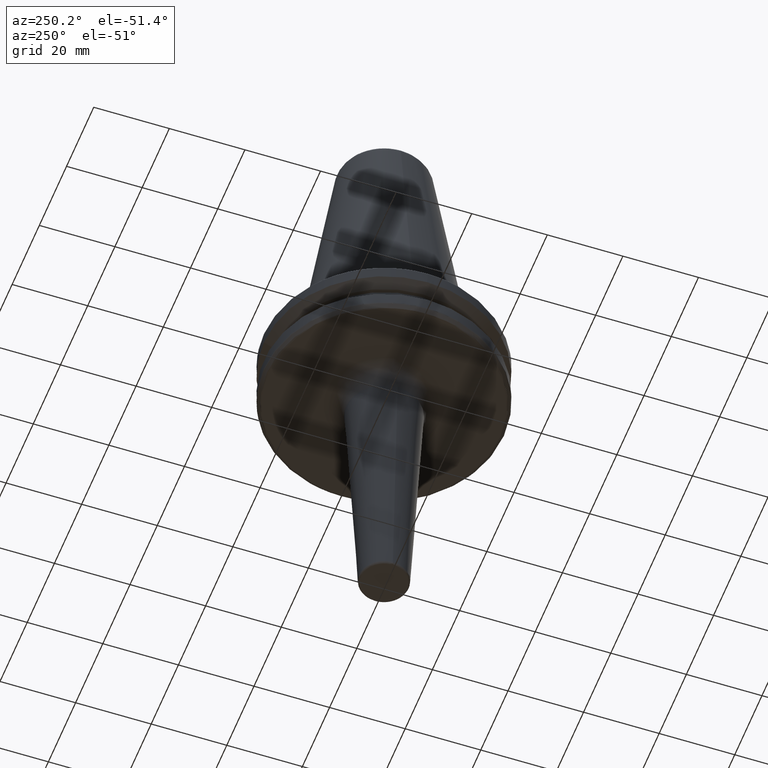
[diagram: clean part render]
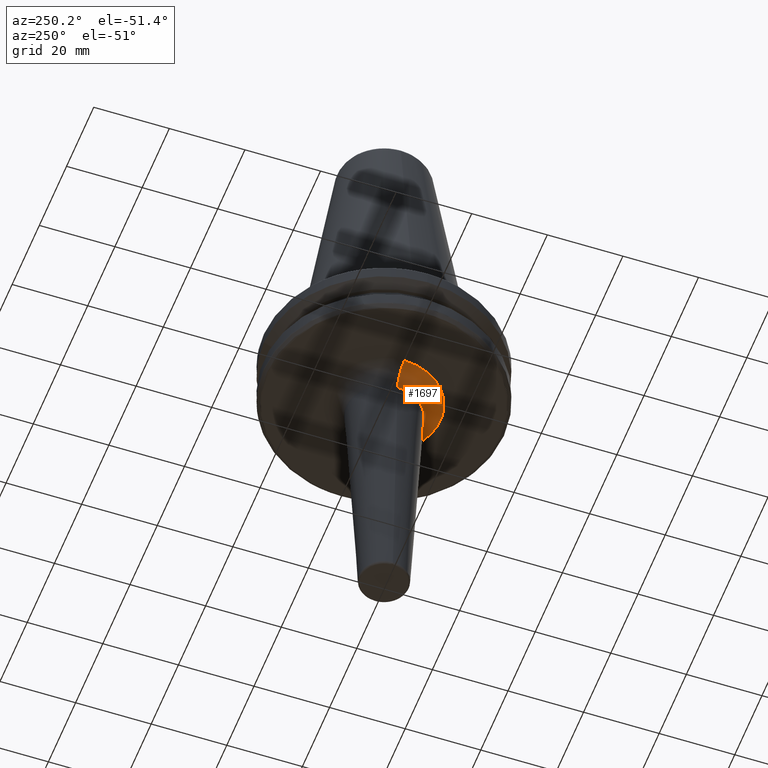
[diagram: same view with one face highlighted and labeled with its STEP entity id]
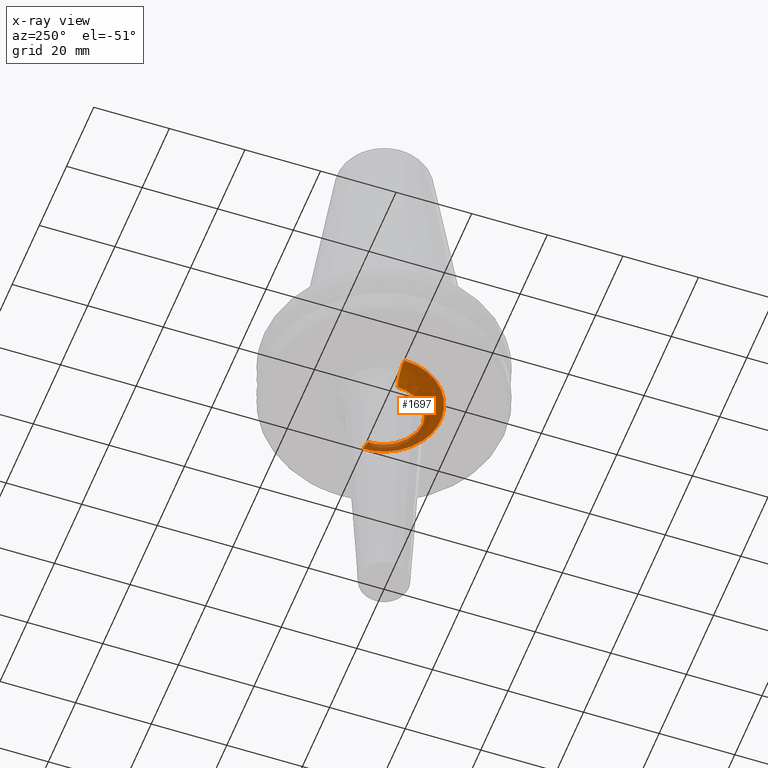
[diagram: x-ray of the same camera — body ghosted, the highlighted face saturated]
A machine part, auxiliary view. The second image highlights one B-rep face of the part: STEP entity #1697.
The next image is the same camera in x-ray: the body ghosted, the highlighted face saturated — about 20% of this face is hidden behind the body in this view.
In plain terms, the highlighted face is a freeform B-spline surface patch.
Its self-contained STEP definition (entity closure, byte-faithful):
#31 = AXIS2_PLACEMENT_3D ( 'NONE', #1517, #95, #1741 ) ;
#48 = CARTESIAN_POINT ( 'NONE',  ( -1.822834357102871800, -14.87724839754033300, -19.10000000000000900 ) ) ;
#60 = CARTESIAN_POINT ( 'NONE',  ( 5.110613125936054300, -14.06149893448535500, -19.10000000000000100 ) ) ;
#77 = CARTESIAN_POINT ( 'NONE',  ( 9.848615005509918400, -11.30872306776463700, -19.10000000000000100 ) ) ;
#85 = CARTESIAN_POINT ( 'NONE',  ( -10.11438543970568600, -2.477309950815632100E-015, -21.03341738283256700 ) ) ;
#93 = CARTESIAN_POINT ( 'NONE',  ( 13.86314464546744100, -5.624218442579086200, -19.10000000000000500 ) ) ;
#95 = DIRECTION ( 'NONE',  ( 0.0000000000000000000, 0.0000000000000000000, -1.000000000000000000 ) ) ;
#106 = CARTESIAN_POINT ( 'NONE',  ( 14.96053438474158700, 1.832137054780770000E-015, -19.10000000000000500 ) ) ;
#200 = CARTESIAN_POINT ( 'NONE',  ( -14.77906769165148200, -2.328123564916845900, -19.10000000000000100 ) ) ;
#207 = CARTESIAN_POINT ( 'NONE',  ( -13.72411570560614200, -5.976803100712901400, -19.10000000000000900 ) ) ;
#218 = CARTESIAN_POINT ( 'NONE',  ( -8.401418717068052500, -12.37894442582497200, -19.10000000000000100 ) ) ;
#227 = CARTESIAN_POINT ( 'NONE',  ( -3.551708748808718200, -14.53645404171686200, -19.10000000000000100 ) ) ;
#284 = CARTESIAN_POINT ( 'NONE',  ( 0.4573533666986031600, -14.96055059751908300, -19.10000000000000500 ) ) ;
#299 = CARTESIAN_POINT ( 'NONE',  ( 5.393945895505792600, -13.95434931609664500, -19.10000000000000500 ) ) ;
#309 = CARTESIAN_POINT ( 'NONE',  ( 14.96053438474158500, 1.832137054780770000E-015, -19.10000000000000900 ) ) ;
#314 = CARTESIAN_POINT ( 'NONE',  ( 11.46041618470569300, -9.640902905948241400, -19.10000000000000900 ) ) ;
#321 = CARTESIAN_POINT ( 'NONE',  ( 9.967386710968716200, -19.93477342193742500, -23.83832021878532700 ) ) ;
#327 = CARTESIAN_POINT ( 'NONE',  ( 13.89897069281874000, -5.535078170416923600, -19.10000000000000100 ) ) ;
#372 =( BOUNDED_SURFACE ( )  B_SPLINE_SURFACE ( 3, 3, ( 
 ( #309, #1951, #546, #2178 ),
 ( #791, #2390, #1024, #2626 ),
 ( #1264, #2853, #1508, #85 ),
 ( #1735, #321, #1961, #558 ) ),
 .UNSPECIFIED., .F., .F., .T. ) 
 B_SPLINE_SURFACE_WITH_KNOTS ( ( 4, 4 ),
 ( 4, 4 ),
 ( 0.0000000000000000000, 1.000000000000000000 ),
 ( 0.0000000000000000000, 1.000000000000000000 ),
 .UNSPECIFIED. ) 
 GEOMETRIC_REPRESENTATION_ITEM ( )  RATIONAL_B_SPLINE_SURFACE ( (
 ( 1.000000000000000000, 0.3333333333333334300, 0.3333333333333334300, 1.000000000000000000),
 ( 0.8169162473415236800, 0.2723054157805079900, 0.2723054157805079900, 0.8169162473415236800),
 ( 0.8169162473415236800, 0.2723054157805079900, 0.2723054157805079900, 0.8169162473415236800),
 ( 1.000000000000000000, 0.3333333333333334300, 0.3333333333333334300, 1.000000000000000000) ) ) 
 REPRESENTATION_ITEM ( '' )  SURFACE ( )  );
#403 = EDGE_CURVE ( 'NONE', #696, #2655, #1072, .T. ) ;
#435 = CARTESIAN_POINT ( 'NONE',  ( -14.73118064764160600, -2.609732947942208000, -19.10000000000000500 ) ) ;
#444 = CARTESIAN_POINT ( 'NONE',  ( -12.98633215065384100, -7.435565127019459400, -19.10000000000000100 ) ) ;
#452 = CARTESIAN_POINT ( 'NONE',  ( -8.239424959934053700, -12.48732913688525900, -19.10000000000000500 ) ) ;
#458 = CARTESIAN_POINT ( 'NONE',  ( -2.930704362195605000, -14.67089392985189500, -19.10000000000000500 ) ) ;
#521 = CARTESIAN_POINT ( 'NONE',  ( 1.933051623074510500, -14.83827703210904900, -19.10000000000000900 ) ) ;
#536 = CARTESIAN_POINT ( 'NONE',  ( 5.477524212900336300, -13.92175573251021000, -19.10000000000000500 ) ) ;
#546 = CARTESIAN_POINT ( 'NONE',  ( -14.96053438474158000, -29.92106876948317100, -19.10000000000000900 ) ) ;
#551 = CARTESIAN_POINT ( 'NONE',  ( 12.27003892767507600, -8.561188725189095900, -19.10000000000000100 ) ) ;
#558 = CARTESIAN_POINT ( 'NONE',  ( -9.967386710968714400, -2.441305646290340400E-015, -23.83832021878532400 ) ) ;
#561 = CARTESIAN_POINT ( 'NONE',  ( 14.32266670053905600, -4.369645814230485900, -19.10000000000000500 ) ) ;
#573 = ORIENTED_EDGE ( 'NONE', *, *, #2842, .T. ) ;
#662 = CARTESIAN_POINT ( 'NONE',  ( -14.96053438474158700, 0.0000000000000000000, -19.10000000000000500 ) ) ;
#669 = CARTESIAN_POINT ( 'NONE',  ( -14.71628863103540900, -2.692457026900050700, -19.10000000000000500 ) ) ;
#674 = CARTESIAN_POINT ( 'NONE',  ( -12.65849289802877900, -7.973985480574773600, -19.10000000000000500 ) ) ;
#681 = CARTESIAN_POINT ( 'NONE',  ( -7.111348432196256100, -13.17942268091052000, -19.10000000000000500 ) ) ;
#695 = CARTESIAN_POINT ( 'NONE',  ( -2.781895805046198200, -14.69964382547349000, -19.10000000000000100 ) ) ;
#696 = VERTEX_POINT ( 'NONE', #906 ) ;
#716 = CARTESIAN_POINT ( 'NONE',  ( -14.96053438474158500, 0.0000000000000000000, -24.10000000000000900 ) ) ;
#767 = CARTESIAN_POINT ( 'NONE',  ( 2.525260090910677500, -14.74606561499225100, -19.10000000000000900 ) ) ;
#781 = CARTESIAN_POINT ( 'NONE',  ( 6.664192353297434800, -13.41107638299839000, -19.10000000000000500 ) ) ;
#791 = CARTESIAN_POINT ( 'NONE',  ( 12.15178225160734900, 1.488164123836655700E-015, -19.10000000000001600 ) ) ;
#798 = CARTESIAN_POINT ( 'NONE',  ( 12.45090476805093400, -8.294379175922422600, -19.10000000000000900 ) ) ;
#810 = CARTESIAN_POINT ( 'NONE',  ( 14.62854735930698200, -3.138425023209853800, -19.10000000000000900 ) ) ;
#878 = EDGE_CURVE ( 'NONE', #922, #696, #2930, .T. ) ;
#906 = CARTESIAN_POINT ( 'NONE',  ( 14.96053438474158700, 1.832137054780770000E-015, -19.10000000000000500 ) ) ;
#913 = CARTESIAN_POINT ( 'NONE',  ( -14.45627731223578400, -3.904952447476566200, -19.10000000000000900 ) ) ;
#922 = VERTEX_POINT ( 'NONE', #2885 ) ;
#925 = CARTESIAN_POINT ( 'NONE',  ( -12.55720869914989100, -8.132539203948995900, -19.10000000000000500 ) ) ;
#934 = CARTESIAN_POINT ( 'NONE',  ( -5.915755106728197700, -13.74228308868734800, -19.10000000000000500 ) ) ;
#951 = DIRECTION ( 'NONE',  ( -1.000000000000000000, 0.0000000000000000000, 0.0000000000000000000 ) ) ;
#990 = EDGE_LOOP ( 'NONE', ( #2775, #2266, #573, #2521 ) ) ;
#1003 = CARTESIAN_POINT ( 'NONE',  ( 2.665998871118263400, -14.72110115962375900, -19.10000000000000500 ) ) ;
#1017 = CARTESIAN_POINT ( 'NONE',  ( 7.813606175290055400, -12.75907711216800800, -19.10000000000000100 ) ) ;
#1024 = CARTESIAN_POINT ( 'NONE',  ( -12.15178225160734000, -24.30356450321469500, -19.10000000000001200 ) ) ;
#1028 = AXIS2_PLACEMENT_3D ( 'NONE', #2135, #2558, #2599 ) ;
#1031 = CARTESIAN_POINT ( 'NONE',  ( 12.79846803407255100, -7.763553301176772300, -19.10000000000000500 ) ) ;
#1043 = CARTESIAN_POINT ( 'NONE',  ( 14.68824958403206400, -2.841450050711145100, -19.10000000000000500 ) ) ;
#1072 = CIRCLE ( 'NONE', #1028, 4.999999999999999100 ) ;
#1139 = CARTESIAN_POINT ( 'NONE',  ( -14.06149893448506400, -5.110613125940515600, -19.10000000000000500 ) ) ;
#1149 = CARTESIAN_POINT ( 'NONE',  ( -11.30872306775847500, -9.848615005516089500, -19.10000000000000500 ) ) ;
#1158 = CARTESIAN_POINT ( 'NONE',  ( -5.624218442581563300, -13.86314464546607500, -19.10000000000000500 ) ) ;
#1244 = CARTESIAN_POINT ( 'NONE',  ( 3.199184109788572300, -14.62253607668546700, -19.10000000000000500 ) ) ;
#1257 = CARTESIAN_POINT ( 'NONE',  ( 8.080540953684392800, -12.59072804468604700, -19.10000000000000100 ) ) ;
#1264 = CARTESIAN_POINT ( 'NONE',  ( 10.11438543970568600, 1.238654975407816400E-015, -21.03341738283256700 ) ) ;
#1268 = CARTESIAN_POINT ( 'NONE',  ( 13.56454964078820800, -6.319451434702531700, -19.10000000000000500 ) ) ;
#1281 = CARTESIAN_POINT ( 'NONE',  ( 14.70557042885873500, -2.750377173285976500, -19.10000000000000500 ) ) ;
#1314 = CARTESIAN_POINT ( 'NONE',  ( 9.967386710968712600, 0.0000000000000000000, -23.83832021878532000 ) ) ;
#1387 = CARTESIAN_POINT ( 'NONE',  ( -13.95434931609656300, -5.393945895507192400, -19.10000000000000900 ) ) ;
#1398 = CARTESIAN_POINT ( 'NONE',  ( -9.640902905953629100, -11.46041618470029600, -19.10000000000000500 ) ) ;
#1406 = CARTESIAN_POINT ( 'NONE',  ( -5.535078170416636700, -13.89897069281875400, -19.09999999999999800 ) ) ;
#1440 = EDGE_CURVE ( 'NONE', #2655, #2085, #1634, .T. ) ;
#1483 = CARTESIAN_POINT ( 'NONE',  ( 4.711529462871536300, -14.20297987373240300, -19.10000000000000100 ) ) ;
#1501 = CARTESIAN_POINT ( 'NONE',  ( 9.050728366952482100, -11.95696294643678400, -19.10000000000000900 ) ) ;
#1508 = CARTESIAN_POINT ( 'NONE',  ( -10.11438543970568000, -20.22877087941137100, -21.03341738283256400 ) ) ;
#1513 = CARTESIAN_POINT ( 'NONE',  ( 13.82744230463585600, -5.711969985418119400, -19.10000000000000500 ) ) ;
#1517 = CARTESIAN_POINT ( 'NONE',  ( 0.0000000000000000000, 0.0000000000000000000, -23.83832021878532000 ) ) ;
#1525 = CARTESIAN_POINT ( 'NONE',  ( 14.96053438474158700, -0.9152375320867005600, -19.10000000000000500 ) ) ;
#1570 = CARTESIAN_POINT ( 'NONE',  ( -2.750371694403849400, -14.70557144293955100, -19.10000000000000100 ) ) ;
#1616 = CARTESIAN_POINT ( 'NONE',  ( -14.83825575283857900, -1.933166636284343400, -19.10000000000000500 ) ) ;
#1622 = CARTESIAN_POINT ( 'NONE',  ( -13.92175573251049200, -5.477524212899922400, -19.10000000000000100 ) ) ;
#1634 = CIRCLE ( 'NONE', #31, 9.967386710968714400 ) ;
#1635 = CARTESIAN_POINT ( 'NONE',  ( -8.561188725191460200, -12.27003892767272000, -19.10000000000000900 ) ) ;
#1642 = CARTESIAN_POINT ( 'NONE',  ( -4.369645814238539000, -14.32266670053856400, -19.10000000000000500 ) ) ;
#1695 = CARTESIAN_POINT ( 'NONE',  ( -0.9147067333972260800, -14.96050195918658000, -19.10000000000000100 ) ) ;
#1697 = ADVANCED_FACE ( 'NONE', ( #1821 ), #372, .F. ) ;
#1715 = CARTESIAN_POINT ( 'NONE',  ( 5.309103746308795600, -13.98705040986307300, -19.10000000000000500 ) ) ;
#1728 = CARTESIAN_POINT ( 'NONE',  ( 10.94373546768296800, -10.21368143655561100, -19.10000000000000100 ) ) ;
#1735 = CARTESIAN_POINT ( 'NONE',  ( 9.967386710968714400, 1.220652823145170200E-015, -23.83832021878532400 ) ) ;
#1740 = CARTESIAN_POINT ( 'NONE',  ( 13.88676965802146900, -5.565625177957300300, -19.10000000000000500 ) ) ;
#1741 = DIRECTION ( 'NONE',  ( -1.000000000000000000, 0.0000000000000000000, 0.0000000000000000000 ) ) ;
#1821 = FACE_OUTER_BOUND ( 'NONE', #990, .T. ) ;
#1839 = CARTESIAN_POINT ( 'NONE',  ( -14.74605896522022900, -2.525296032538750300, -19.10000000000000900 ) ) ;
#1847 = CARTESIAN_POINT ( 'NONE',  ( -13.41107638299028100, -6.664192353308994400, -19.09999999999999800 ) ) ;
#1855 = CARTESIAN_POINT ( 'NONE',  ( -8.294379175923174000, -12.45090476805019200, -19.10000000000000500 ) ) ;
#1859 = CARTESIAN_POINT ( 'NONE',  ( -9.967386710968712600, 1.220652823145169800E-015, -23.83832021878532000 ) ) ;
#1861 = CARTESIAN_POINT ( 'NONE',  ( -3.138425023213379000, -14.62854735930676000, -19.10000000000000500 ) ) ;
#1926 = CARTESIAN_POINT ( 'NONE',  ( 1.140651454518116100, -14.92934268087165100, -19.10000000000000100 ) ) ;
#1942 = CARTESIAN_POINT ( 'NONE',  ( 5.450457270629521600, -13.93237201287146700, -19.09999999999999800 ) ) ;
#1951 = CARTESIAN_POINT ( 'NONE',  ( 14.96053438474159100, -29.92106876948316000, -19.10000000000000900 ) ) ;
#1955 = CARTESIAN_POINT ( 'NONE',  ( 12.00917120495389100, -8.928460285651315300, -19.10000000000000900 ) ) ;
#1961 = CARTESIAN_POINT ( 'NONE',  ( -9.967386710968709100, -19.93477342193742900, -23.83832021878532700 ) ) ;
#1967 = CARTESIAN_POINT ( 'NONE',  ( 14.08867634067427800, -5.055939780440895400, -19.10000000000000100 ) ) ;
#2066 = CARTESIAN_POINT ( 'NONE',  ( -14.96053438474158500, -0.4574409958108649500, -19.10000000000000100 ) ) ;
#2076 = CARTESIAN_POINT ( 'NONE',  ( -14.72109916469215200, -2.666009653606686000, -19.10000000000000100 ) ) ;
#2082 = CARTESIAN_POINT ( 'NONE',  ( -12.75907711216446400, -7.813606175295118000, -19.10000000000000500 ) ) ;
#2085 = VERTEX_POINT ( 'NONE', #1859 ) ;
#2089 = CARTESIAN_POINT ( 'NONE',  ( -7.763553301187065400, -12.79846803406686800, -19.10000000000000500 ) ) ;
#2099 = CARTESIAN_POINT ( 'NONE',  ( -2.841450050712249100, -14.68824958403198800, -19.09999999999999800 ) ) ;
#2135 = CARTESIAN_POINT ( 'NONE',  ( 14.96053438474158500, 1.832137054780770000E-015, -24.10000000000000900 ) ) ;
#2154 = CARTESIAN_POINT ( 'NONE',  ( 2.328056473877775400, -14.77908010455926300, -19.10000000000000500 ) ) ;
#2169 = CARTESIAN_POINT ( 'NONE',  ( 5.976803100706304100, -13.72411570561076900, -19.10000000000000900 ) ) ;
#2178 = CARTESIAN_POINT ( 'NONE',  ( -14.96053438474158500, -3.664274109561540000E-015, -19.10000000000000900 ) ) ;
#2182 = CARTESIAN_POINT ( 'NONE',  ( 12.37894442582639200, -8.401418717066633200, -19.10000000000000900 ) ) ;
#2190 = CARTESIAN_POINT ( 'NONE',  ( 14.53645404171724000, -3.551708748802668800, -19.10000000000000900 ) ) ;
#2266 = ORIENTED_EDGE ( 'NONE', *, *, #878, .F. ) ;
#2292 = CARTESIAN_POINT ( 'NONE',  ( -14.62253607668509800, -3.199184109794402700, -19.10000000000000100 ) ) ;
#2305 = CARTESIAN_POINT ( 'NONE',  ( -12.59072804468492500, -8.080540953685993300, -19.10000000000000100 ) ) ;
#2314 = CARTESIAN_POINT ( 'NONE',  ( -6.319451434716038200, -13.56454964078074700, -19.10000000000000500 ) ) ;
#2333 = DIRECTION ( 'NONE',  ( 0.0000000000000000000, 1.000000000000000000, 0.0000000000000000000 ) ) ;
#2372 = CARTESIAN_POINT ( 'NONE',  ( 2.609711896417192800, -14.73118454250807100, -19.10000000000000500 ) ) ;
#2384 = CARTESIAN_POINT ( 'NONE',  ( 7.435565127010795200, -12.98633215065991900, -19.10000000000000500 ) ) ;
#2390 = CARTESIAN_POINT ( 'NONE',  ( 12.15178225160735100, -24.30356450321468400, -19.10000000000001200 ) ) ;
#2395 = CARTESIAN_POINT ( 'NONE',  ( 12.48732913688454500, -8.239424959935336200, -19.10000000000000500 ) ) ;
#2407 = CARTESIAN_POINT ( 'NONE',  ( 14.67089392985201700, -2.930704362193714600, -19.10000000000000900 ) ) ;
#2511 = CARTESIAN_POINT ( 'NONE',  ( -14.20297987373192000, -4.711529462879185300, -19.10000000000000900 ) ) ;
#2520 = CARTESIAN_POINT ( 'NONE',  ( -11.95696294643864400, -9.050728366950624000, -19.10000000000000100 ) ) ;
#2521 = ORIENTED_EDGE ( 'NONE', *, *, #1440, .F. ) ;
#2529 = CARTESIAN_POINT ( 'NONE',  ( -5.711969985422344500, -13.82744230463352700, -19.10000000000000500 ) ) ;
#2558 = DIRECTION ( 'NONE',  ( 1.224646799147353200E-016, -1.000000000000000000, 0.0000000000000000000 ) ) ;
#2599 = DIRECTION ( 'NONE',  ( 1.000000000000000000, 1.224646799147353900E-016, 0.0000000000000000000 ) ) ;
#2604 = CARTESIAN_POINT ( 'NONE',  ( 2.692457026900414400, -14.71628863103537900, -19.10000000000000100 ) ) ;
#2618 = CARTESIAN_POINT ( 'NONE',  ( 7.973985480571730700, -12.65849289803091300, -19.10000000000000900 ) ) ;
#2626 = CARTESIAN_POINT ( 'NONE',  ( -12.15178225160734900, -2.976328247673311500E-015, -19.10000000000001600 ) ) ;
#2633 = CARTESIAN_POINT ( 'NONE',  ( 13.17942268092046600, -7.111348432178251900, -19.10000000000000900 ) ) ;
#2644 = CARTESIAN_POINT ( 'NONE',  ( 14.69964382547353500, -2.781895805045632400, -19.10000000000000900 ) ) ;
#2655 = VERTEX_POINT ( 'NONE', #1314 ) ;
#2725 = CIRCLE ( 'NONE', #2921, 4.999999999999999100 ) ;
#2742 = CARTESIAN_POINT ( 'NONE',  ( -13.98705040986291700, -5.309103746311190100, -19.09999999999999800 ) ) ;
#2752 = CARTESIAN_POINT ( 'NONE',  ( -10.21368143655869600, -10.94373546767989000, -19.10000000000000500 ) ) ;
#2760 = CARTESIAN_POINT ( 'NONE',  ( -5.565625177958568600, -13.88676965802076400, -19.10000000000000100 ) ) ;
#2775 = ORIENTED_EDGE ( 'NONE', *, *, #403, .F. ) ;
#2833 = CARTESIAN_POINT ( 'NONE',  ( 3.904952447466366400, -14.45627731223642900, -19.10000000000000500 ) ) ;
#2842 = EDGE_CURVE ( 'NONE', #922, #2085, #2725, .T. ) ;
#2846 = CARTESIAN_POINT ( 'NONE',  ( 8.132539203948878600, -12.55720869915000600, -19.10000000000000500 ) ) ;
#2853 = CARTESIAN_POINT ( 'NONE',  ( 10.11438543970568700, -20.22877087941136800, -21.03341738283256400 ) ) ;
#2858 = CARTESIAN_POINT ( 'NONE',  ( 13.74228308869170300, -5.915755106720316000, -19.10000000000000500 ) ) ;
#2868 = CARTESIAN_POINT ( 'NONE',  ( 14.87728084812677500, -1.822659032874832000, -19.10000000000000500 ) ) ;
#2885 = CARTESIAN_POINT ( 'NONE',  ( -14.96053438474158700, 0.0000000000000000000, -19.10000000000000500 ) ) ;
#2921 = AXIS2_PLACEMENT_3D ( 'NONE', #716, #2333, #951 ) ;
#2930 = B_SPLINE_CURVE_WITH_KNOTS ( 'NONE', 3,
 ( #662, #2066, #2965, #1616, #200, #1839, #435, #2076, #669, #2292, #913, #2511, #1139, #2742, #1387, #2977, #1622, #207, #1847, #444, #2082, #674, #2305, #925, #2520, #1149, #2752, #1398, #2986, #1635, #218, #1855, #452, #2089, #681, #2314, #934, #2529, #1158, #2760, #1406, #2992, #1642, #227, #1861, #458, #2099, #695, #1570, #48, #1695, #284, #1926, #521, #2154, #767, #2372, #1003, #2604, #1244, #2833, #1483, #60, #1715, #299, #1942, #536, #2169, #781, #2384, #1017, #2618, #1257, #2846, #1501, #77, #1728, #314, #1955, #551, #2182, #798, #2395, #1031, #2633, #1268, #2858, #1513, #93, #1740, #327, #1967, #561, #2190, #810, #2407, #1043, #2644, #1281, #2868, #1525, #106 ),
 .UNSPECIFIED., .F., .F.,
 ( 4, 1, 1, 1, 1, 2, 2, 1, 1, 1, 1, 2, 2, 1, 1, 1, 2, 2, 2, 1, 1, 1, 2, 2, 1, 1, 1, 1, 2, 2, 1, 1, 1, 1, 2, 2, 2, 1, 1, 1, 1, 2, 2, 1, 1, 1, 1, 2, 2, 1, 1, 1, 2, 2, 2, 1, 1, 1, 2, 2, 1, 1, 1, 1, 2, 2, 1, 1, 1, 1, 2, 2, 4 ),
 ( 0.0000000000000000000, 0.03125000000000029100, 0.04687500000000043700, 0.05468750000000050000, 0.05859375000000054800, 0.06054687500000056200, 0.06250000000000058300, 0.09375000000000062500, 0.1093750000000006400, 0.1171875000000006400, 0.1210937500000006200, 0.1230468750000006200, 0.1250000000000006100, 0.1562500000000008600, 0.1718750000000009700, 0.1796875000000009700, 0.1835937500000010000, 0.1875000000000010000, 0.2500000000000003300, 0.2812500000000000600, 0.2968749999999999400, 0.3046874999999998900, 0.3085937499999998900, 0.3124999999999998300, 0.3437499999999992800, 0.3593749999999989500, 0.3671874999999988300, 0.3710937499999987200, 0.3730468749999987200, 0.3749999999999986700, 0.4062499999999981700, 0.4218749999999979500, 0.4296874999999977800, 0.4335937499999977200, 0.4355468749999976700, 0.4374999999999976100, 0.4999999999999966100, 0.5312499999999961100, 0.5468749999999957800, 0.5546874999999956700, 0.5585937499999955600, 0.5605468749999955600, 0.5624999999999955600, 0.5937499999999954500, 0.6093749999999953400, 0.6171874999999953400, 0.6210937499999953400, 0.6230468749999953400, 0.6249999999999953400, 0.6562499999999958900, 0.6718749999999961100, 0.6796874999999963400, 0.6835937499999964500, 0.6874999999999966700, 0.7499999999999981100, 0.7812499999999988900, 0.7968749999999992200, 0.8046874999999994400, 0.8085937499999994400, 0.8124999999999994400, 0.8437499999999992200, 0.8593749999999990000, 0.8671874999999988900, 0.8710937499999987800, 0.8730468749999987800, 0.8749999999999987800, 0.9062499999999987800, 0.9218749999999986700, 0.9296874999999986700, 0.9335937499999986700, 0.9355468749999987800, 0.9374999999999987800, 1.000000000000000000 ),
 .UNSPECIFIED. ) ;
#2965 = CARTESIAN_POINT ( 'NONE',  ( -14.92931430851103700, -1.140804805464567000, -19.10000000000000900 ) ) ;
#2977 = CARTESIAN_POINT ( 'NONE',  ( -13.93237201287142000, -5.450457270630242800, -19.10000000000000500 ) ) ;
#2986 = CARTESIAN_POINT ( 'NONE',  ( -8.928460285655356500, -12.00917120494984800, -19.10000000000000500 ) ) ;
#2992 = CARTESIAN_POINT ( 'NONE',  ( -5.055939780445495300, -14.08867634067400200, -19.10000000000000500 ) ) ;